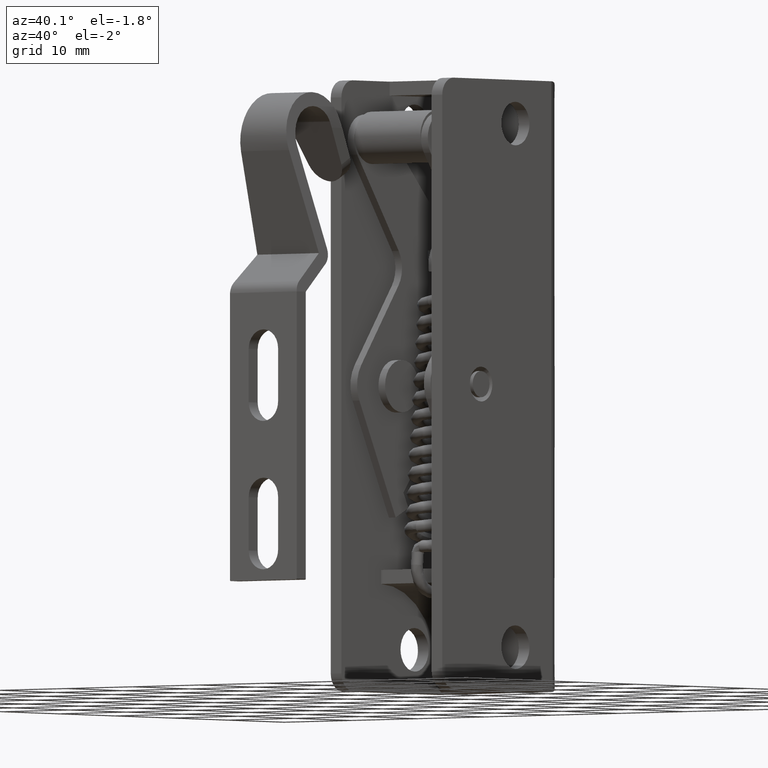
[diagram: clean part render]
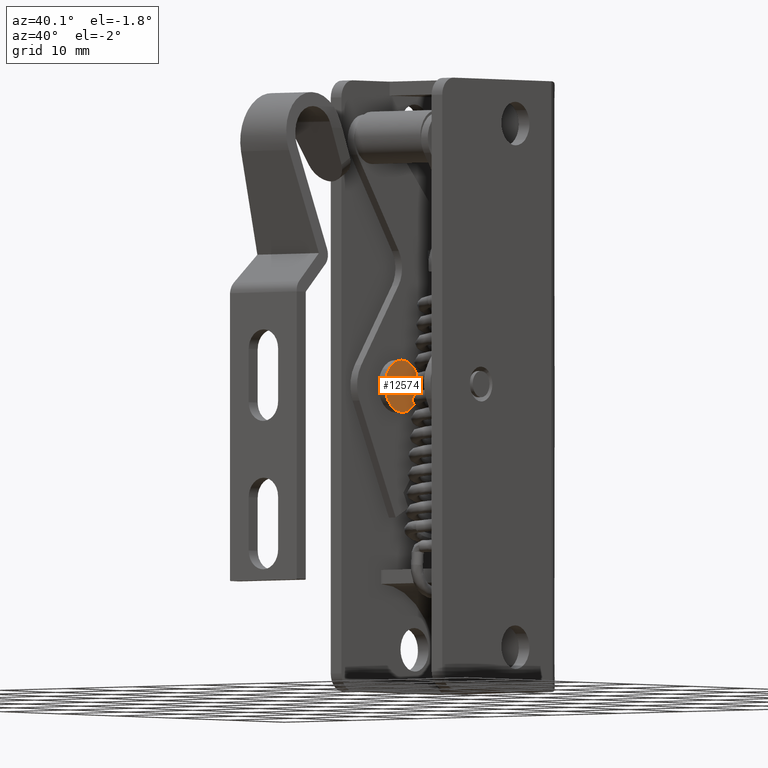
[diagram: same view with one face highlighted and labeled with its STEP entity id]
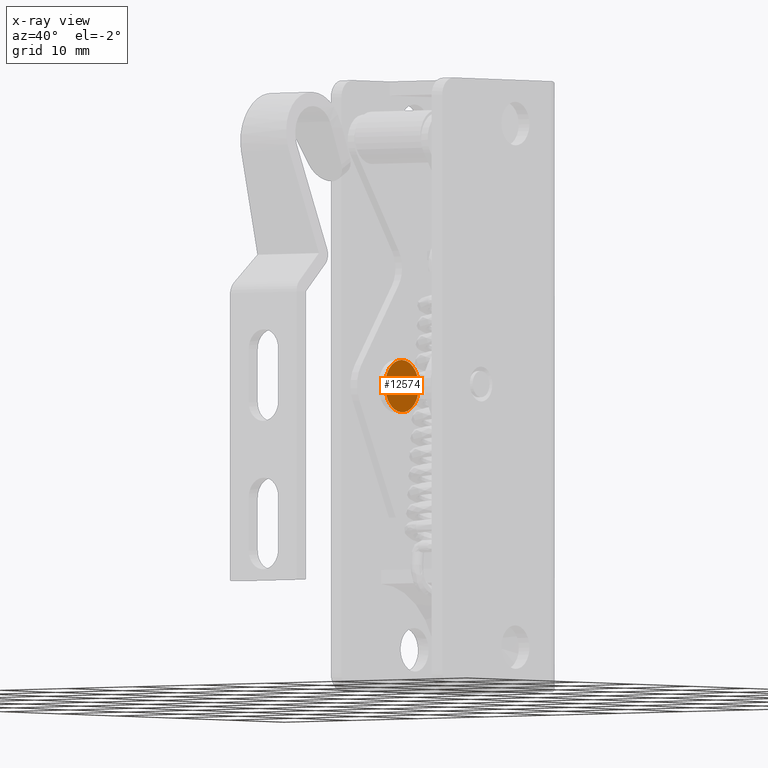
[diagram: x-ray of the same camera — body ghosted, the highlighted face saturated]
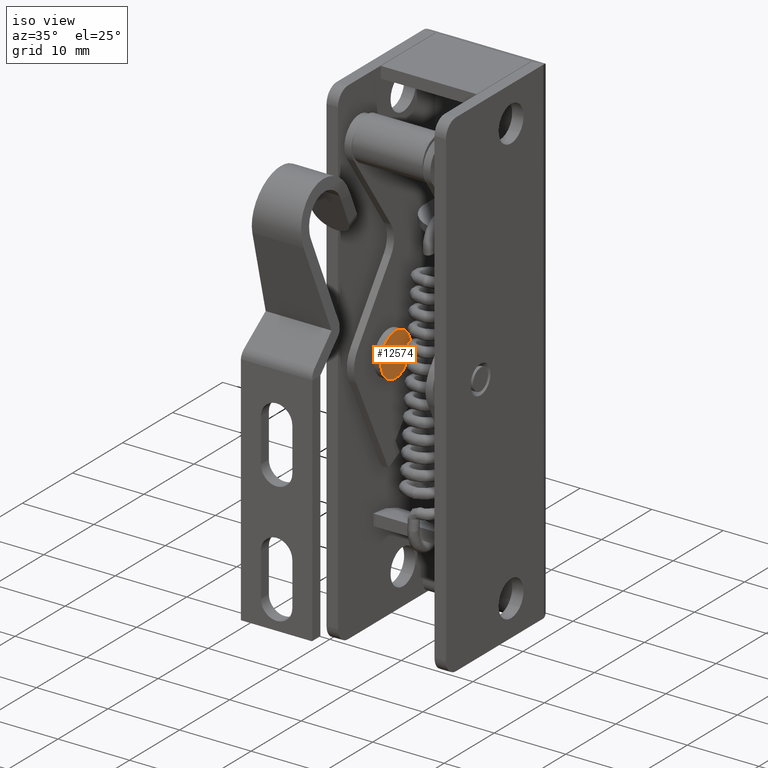
[diagram: same view with one face highlighted and labeled with its STEP entity id]
A machine part, auxiliary view. The second image highlights one B-rep face of the part: STEP entity #12574.
The next image is the same camera in x-ray: the body ghosted, the highlighted face saturated — about 0% of this face is hidden behind the body in this view.
A second angle (iso view) of the same face is appended — the face is thin or edge-on in the first view.
In plain terms, the highlighted face is a freeform B-spline surface patch.
Its self-contained STEP definition (entity closure, byte-faithful):
#12172=CARTESIAN_POINT('',(-3.500000000000000,-8.390658135801843,-28.062773783751151));
#12173=VERTEX_POINT('',#12172);
#12179=CARTESIAN_POINT('',(-3.500000000000000,-6.099991000000000,-27.0));
#12180=VERTEX_POINT('',#12179);
#12181=CARTESIAN_POINT('',(-3.500000000000000,-8.390658135801843,-28.062773783751151));
#12182=CARTESIAN_POINT('',(-3.500000000000014,-8.180389957599640,-27.813875236449210));
#12183=CARTESIAN_POINT('',(-3.499999999999976,-7.782428339834820,-27.475023843171201));
#12184=CARTESIAN_POINT('',(-3.500000000000009,-6.995755944732802,-27.096987546472160));
#12185=CARTESIAN_POINT('',(-3.499999999999997,-6.452988476924223,-26.999750907917019));
#12186=CARTESIAN_POINT('',(-3.500000000000000,-6.099991000000000,-27.0));
#12187=B_SPLINE_CURVE_WITH_KNOTS('',3,(#12181,#12182,#12183,#12184,#12185,#12186),.UNSPECIFIED.,.F.,.U.,(4,1,1,4),(0.000000030619183,0.977416962027974,1.547562825012413,2.606425033429768),.UNSPECIFIED.);
#12188=EDGE_CURVE('',#12173,#12180,#12187,.T.);
#12190=CARTESIAN_POINT('',(-3.500000000000000,-3.099991000000137,-30.000000905883439));
#12191=VERTEX_POINT('',#12190);
#12192=CARTESIAN_POINT('',(-3.500000000000000,-6.099991000000000,-27.0));
#12193=CARTESIAN_POINT('',(-3.500000000000004,-5.842277997021848,-26.999935931124138));
#12194=CARTESIAN_POINT('',(-3.499999999999995,-5.314619582474236,-27.068388313324530));
#12195=CARTESIAN_POINT('',(-3.500000000000000,-4.570896673768924,-27.376364680651260));
#12196=CARTESIAN_POINT('',(-3.500000000000002,-3.975388898663840,-27.841164198756459));
#12197=CARTESIAN_POINT('',(-3.500000000000004,-3.577605515324504,-28.344598969734079));
#12198=CARTESIAN_POINT('',(-3.499999999999914,-3.296474566025365,-28.878347690543428));
#12199=CARTESIAN_POINT('',(-3.500000000000251,-3.134832853496858,-29.423218635440769));
#12200=CARTESIAN_POINT('',(-3.499999999999782,-3.099984937171058,-29.828200502202371));
#12201=CARTESIAN_POINT('',(-3.500000000000000,-3.099991000000137,-30.000000905883439));
#12202=B_SPLINE_CURVE_WITH_KNOTS('',3,(#12192,#12193,#12194,#12195,#12196,#12197,#12198,#12199,#12200,#12201),.UNSPECIFIED.,.F.,.U.,(4,1,1,1,1,1,1,4),(0.000000098743394,0.773126367526345,1.583087134314253,2.392995238426139,3.018878595439492,3.497498107391009,4.197009583432926,4.712419059207405),.UNSPECIFIED.);
#12203=EDGE_CURVE('',#12180,#12191,#12202,.T.);
#12205=CARTESIAN_POINT('',(-3.500000000000000,-6.099991000000000,-33.0));
#12206=VERTEX_POINT('',#12205);
#12207=CARTESIAN_POINT('',(-3.500000000000000,-3.099991000000137,-30.000000905883439));
#12208=CARTESIAN_POINT('',(-3.500000000000012,-3.099907266061706,-30.257719649575520));
#12209=CARTESIAN_POINT('',(-3.499999999999979,-3.149335473913436,-30.638096834840209));
#12210=CARTESIAN_POINT('',(-3.500000000000020,-3.330595194950984,-31.186807710801482));
#12211=CARTESIAN_POINT('',(-3.499999999999979,-3.546395636490684,-31.602736642778041));
#12212=CARTESIAN_POINT('',(-3.500000000000016,-3.859342360339473,-32.014028098838537));
#12213=CARTESIAN_POINT('',(-3.499999999999981,-4.225081846395154,-32.362249191516007));
#12214=CARTESIAN_POINT('',(-3.500000000000007,-4.739493824140727,-32.701513151938343));
#12215=CARTESIAN_POINT('',(-3.500000000000024,-5.375958445826636,-32.942512577188850));
#12216=CARTESIAN_POINT('',(-3.499999999999989,-5.866825515835825,-33.000041604591637));
#12217=CARTESIAN_POINT('',(-3.500000000000000,-6.099991000000000,-33.0));
#12218=B_SPLINE_CURVE_WITH_KNOTS('',3,(#12207,#12208,#12209,#12210,#12211,#12212,#12213,#12214,#12215,#12216,#12217),.UNSPECIFIED.,.F.,.U.,(4,1,1,1,1,1,1,1,4),(0.000000099061119,0.773126200141733,1.141288247664666,1.730344469420206,2.172134751728647,2.687531602083368,3.239784979613193,4.012921910638957,4.712418038059236),.UNSPECIFIED.);
#12219=EDGE_CURVE('',#12191,#12206,#12218,.T.);
#12221=CARTESIAN_POINT('',(-3.500000000000000,-8.165054521655735,-32.176122996193882));
#12222=VERTEX_POINT('',#12221);
#12223=CARTESIAN_POINT('',(-3.500000000000000,-6.099991000000000,-33.0));
#12224=CARTESIAN_POINT('',(-3.500000000000002,-6.325386534350923,-33.000040041381027));
#12225=CARTESIAN_POINT('',(-3.499999999999996,-6.788024004874685,-32.947631359987447));
#12226=CARTESIAN_POINT('',(-3.500000000000007,-7.507806423961874,-32.689795894757438));
#12227=CARTESIAN_POINT('',(-3.500000000000003,-7.950013225543908,-32.380372132058987));
#12228=CARTESIAN_POINT('',(-3.500000000000000,-8.165054521655735,-32.176122996193882));
#12229=B_SPLINE_CURVE_WITH_KNOTS('',3,(#12223,#12224,#12225,#12226,#12227,#12228),.UNSPECIFIED.,.F.,.U.,(4,1,1,4),(0.000000022759997,0.676185076468233,1.387951980732721,2.277667873893573),.UNSPECIFIED.);
#12230=EDGE_CURVE('',#12206,#12222,#12229,.T.);
#12316=CARTESIAN_POINT('',(-3.500000000000000,-9.099990999999864,-29.999999094116550));
#12317=VERTEX_POINT('',#12316);
#12318=CARTESIAN_POINT('',(-3.500000000000000,-8.165054521655735,-32.176122996193882));
#12319=CARTESIAN_POINT('',(-3.500000000000002,-8.293836019946999,-32.053923943013643));
#12320=CARTESIAN_POINT('',(-3.499999999999991,-8.571764253852145,-31.738870573479510));
#12321=CARTESIAN_POINT('',(-3.500000000000012,-8.885560404784453,-31.182616908262109));
#12322=CARTESIAN_POINT('',(-3.499999999999972,-9.065011144196051,-30.570644561731800));
#12323=CARTESIAN_POINT('',(-3.500000000000027,-9.100003009122752,-30.177530755488579));
#12324=CARTESIAN_POINT('',(-3.500000000000000,-9.099990999999864,-29.999999094116550));
#12325=B_SPLINE_CURVE_WITH_KNOTS('',3,(#12318,#12319,#12320,#12321,#12322,#12323,#12324),.UNSPECIFIED.,.F.,.U.,(4,1,1,1,4),(0.000000028098957,0.532600209070220,1.255403114480397,1.902151320530804,2.434751501521575),.UNSPECIFIED.);
#12326=EDGE_CURVE('',#12222,#12317,#12325,.T.);
#12328=CARTESIAN_POINT('',(-3.500000000000000,-9.099990999999864,-29.999999094116550));
#12329=CARTESIAN_POINT('',(-3.499999999999987,-9.100063542583147,-29.736745462538909));
#12330=CARTESIAN_POINT('',(-3.500000000000018,-9.036065906327321,-29.254155897735899));
#12331=CARTESIAN_POINT('',(-3.499999999999980,-8.778722330625529,-28.596485149325758));
#12332=CARTESIAN_POINT('',(-3.500000000000035,-8.532343711730519,-28.230258831377839));
#12333=CARTESIAN_POINT('',(-3.500000000000000,-8.390658135801843,-28.062773783751151));
#12334=B_SPLINE_CURVE_WITH_KNOTS('',3,(#12328,#12329,#12330,#12331,#12332,#12333),.UNSPECIFIED.,.F.,.U.,(4,1,1,4),(0.000000017365159,0.789752877416648,1.447867526837094,2.105993784844633),.UNSPECIFIED.);
#12335=EDGE_CURVE('',#12317,#12173,#12334,.T.);
#12561=CARTESIAN_POINT('',(-3.500000000000000,-9.399690797963352,-33.299699988370840));
#12562=CARTESIAN_POINT('',(-3.500000000000000,-9.399690797963352,-26.700299850696620));
#12563=CARTESIAN_POINT('',(-3.500000000000000,-2.800291309325010,-33.299699988370840));
#12564=CARTESIAN_POINT('',(-3.500000000000000,-2.800291309325010,-26.700299850696620));
#12565=B_SPLINE_SURFACE_WITH_KNOTS('',1,1,((#12561,#12563),(#12562,#12564)),.UNSPECIFIED.,.F.,.F.,.U.,(2,2),(2,2),(0.0,6.599400137674216),(0.0,6.599399488638342),.UNSPECIFIED.);
#12566=ORIENTED_EDGE('',*,*,#12188,.F.);
#12567=ORIENTED_EDGE('',*,*,#12335,.F.);
#12568=ORIENTED_EDGE('',*,*,#12326,.F.);
#12569=ORIENTED_EDGE('',*,*,#12230,.F.);
#12570=ORIENTED_EDGE('',*,*,#12219,.F.);
#12571=ORIENTED_EDGE('',*,*,#12203,.F.);
#12572=EDGE_LOOP('',(#12566,#12567,#12568,#12569,#12570,#12571));
#12573=FACE_OUTER_BOUND('',#12572,.T.);
#12574=ADVANCED_FACE('',(#12573),#12565,.F.);